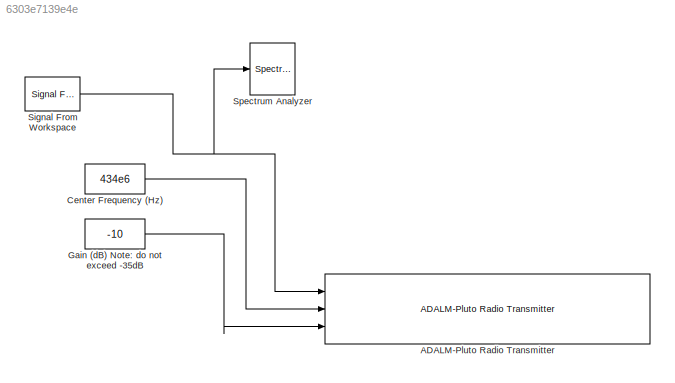
MODEL slx_6303e7139e4e
KIND model
CONFIG AbsTol = auto
CONFIG EnableMultiTasking = on
CONFIG FixedStep = auto
CONFIG MaxStep = auto
CONFIG MinStep = auto
CONFIG RelTol = 1e-3
CONFIG SampleTimeConstraint = Unconstrained
CONFIG SolverName = ode45
CONFIG StartTime = 0.0
CONFIG StopTime = inf
BLOCK [Reference] ADALM-Pluto Radio Transmitter  REF=plutoradiolib/ADALM-Pluto Radio
Transmitter
  Ports = [3]
  SourceBlock = plutoradiolib/ADALM-Pluto Radio\nTransmitter
  SourceProductBaseCode = PLUTO
  SourceType = comm.SDRTxPluto
BLOCK [Constant] Center Frequency (Hz)
  SampleTime = -1
  Value = 434e6
BLOCK [Constant] Gain (dB) Note: do not exceed -35dB
  SampleTime = -1
  Value = -10
BLOCK [Reference] Signal From Workspace  REF=dspsrcs4/Signal From
Workspace
  Ports = [0, 1]
  SourceBlock = dspsrcs4/Signal From\nWorkspace
  SourceProductBaseCode = DS
  SourceType = Signal From Workspace
BLOCK [SpectrumAnalyzer] Spectrum Analyzer
  Commented = on
  Ports = [1]
  ScopeSpecificationString = spbscopes.SpectrumAnalyzerBlockCfg('CurrentConfiguration', extmgr.ConfigurationSet(extmgr.Configuration('Core','General UI',true),extmgr.Configuration('Core','Source UI',true),extmgr.Configuration('Sources','WiredSimulink',true),extmgr.Configuration('Visuals','Spectrum',true,'AxesProperties',struct('Color',{[0 0 0],[0 0 0]},'XColor',{[0.686274509803922 0.686274509803922 0.686274509803922],[0.68627...<+1981ch>
LINE Center Frequency (Hz):1 -> ADALM-Pluto Radio Transmitter:2
LINE Gain (dB) Note: do not exceed -35dB:1 -> ADALM-Pluto Radio Transmitter:3
NET Signal From Workspace:1 -> ADALM-Pluto Radio Transmitter:1, Spectrum Analyzer:1
note: NET lines group one-source signal fan-out (src -> all destinations, sorted); 1:1 wires keep LINE
